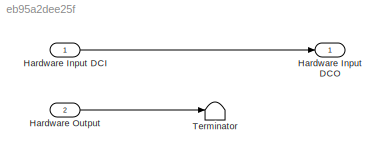
MODEL slx_eb95a2dee25f
KIND model
BLOCK [Inport] Hardware Input DCI
  BusOutputAsStruct = on
  IconDisplay = Port number
  OutDataTypeStr = Bus: HARDWARE_INPUT_BUS
BLOCK [Outport] Hardware Input DCO
  BusOutputAsStruct = on
  IconDisplay = Port number
  OutDataTypeStr = Bus: HARDWARE_INPUT_BUS
BLOCK [Inport] Hardware Output
  BusOutputAsStruct = on
  IconDisplay = Port number
  OutDataTypeStr = Bus: HARDWARE_OUTPUT_BUS
  Port = 2
BLOCK [Terminator] Terminator
LINE Hardware Input DCI:1 -> Hardware Input DCO:1
LINE Hardware Output:1 -> Terminator:1
